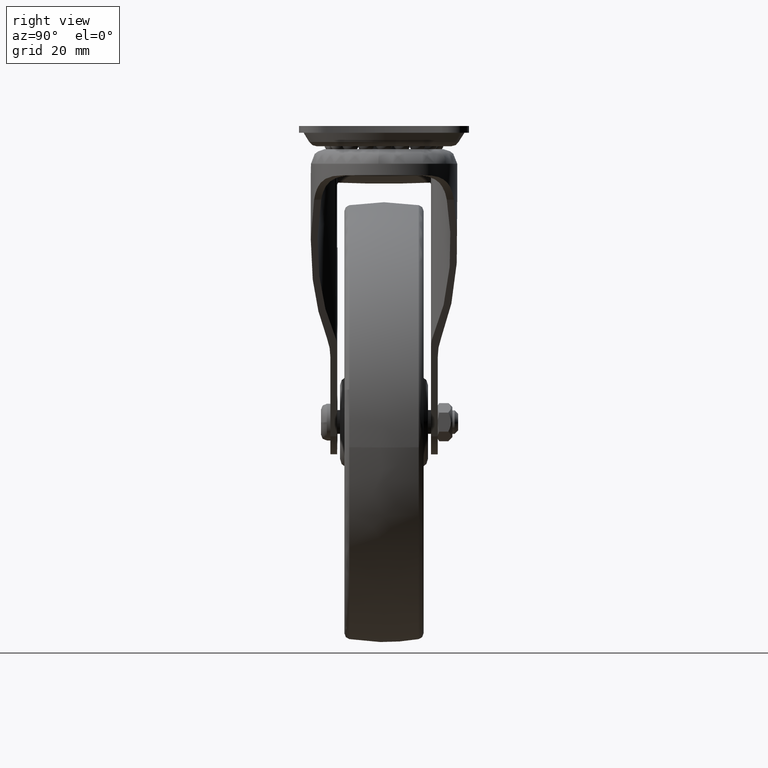
[diagram: clean part render]
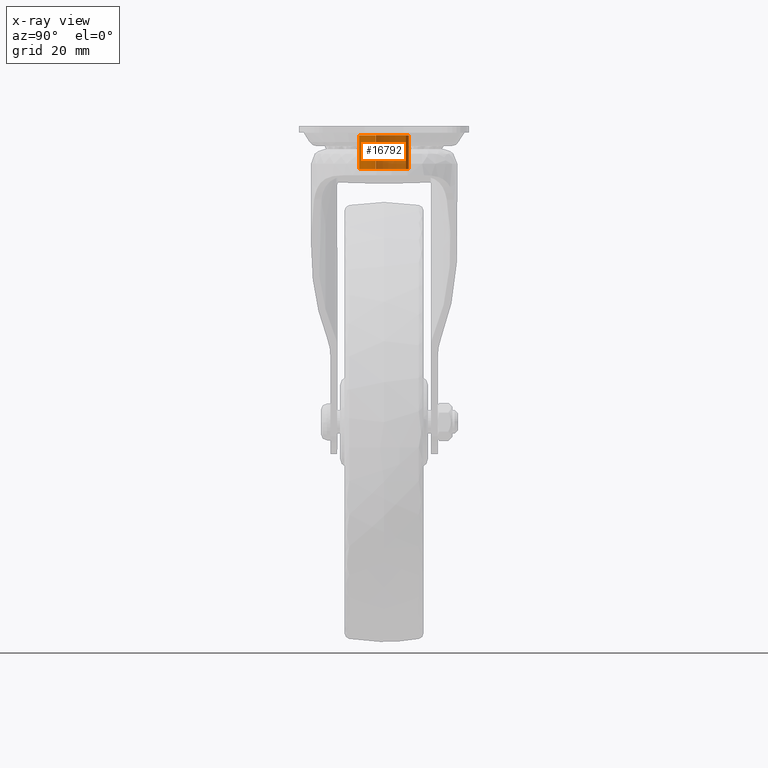
[diagram: x-ray — body ghosted, one internal face saturated and labeled with its STEP entity id]
A machine part, right view, then the same camera in x-ray: the body is ghosted and one INTERNAL B-rep face — a face not visible from any outside direction — is saturated and labeled: STEP entity #16792.
In plain terms, the highlighted face is a freeform B-spline surface patch.
Its self-contained STEP definition (entity closure, byte-faithful):
#16626=CARTESIAN_POINT('',(50.015012401692914,-2.830119467568274,98.089486398882599));
#16627=CARTESIAN_POINT('',(49.766120968067057,-3.534990039304352,98.089486398882599));
#16628=CARTESIAN_POINT('',(49.398023415489149,-4.185600260879469,98.089486398882613));
#16629=CARTESIAN_POINT('',(45.212423154609674,-11.583623676368612,98.089486398882599));
#16630=CARTESIAN_POINT('',(37.814399739120532,-7.398023415489146,98.089486398882613));
#16631=CARTESIAN_POINT('',(30.416376323631379,-3.212423154609676,98.089486398882599));
#16632=CARTESIAN_POINT('',(34.601976584510851,4.185600260879469,98.089486398882613));
#16633=CARTESIAN_POINT('',(38.787576845390319,11.583623676368612,98.089486398882599));
#16634=CARTESIAN_POINT('',(46.185600260879468,7.398023415489146,98.089486398882613));
#16635=CARTESIAN_POINT('',(50.015012401692914,-2.830119467568274,85.902759765027923));
#16636=CARTESIAN_POINT('',(49.766120968067057,-3.534990039304352,85.902759765027923));
#16637=CARTESIAN_POINT('',(49.398023415489149,-4.185600260879469,85.902759765027923));
#16638=CARTESIAN_POINT('',(45.212423154609674,-11.583623676368612,85.902759765027909));
#16639=CARTESIAN_POINT('',(37.814399739120532,-7.398023415489146,85.902759765027923));
#16640=CARTESIAN_POINT('',(30.416376323631379,-3.212423154609676,85.902759765027909));
#16641=CARTESIAN_POINT('',(34.601976584510851,4.185600260879469,85.902759765027923));
#16642=CARTESIAN_POINT('',(38.787576845390319,11.583623676368612,85.902759765027909));
#16643=CARTESIAN_POINT('',(46.185600260879468,7.398023415489146,85.902759765027923));
#16651=(BOUNDED_SURFACE()B_SPLINE_SURFACE(2,1,((#16626,#16635),(#16627,#16636),(#16628,#16637),(#16629,#16638),(#16630,#16639),(#16631,#16640),(#16632,#16641),(#16633,#16642),(#16634,#16643)),.UNSPECIFIED.,.F.,.F.,.U.)B_SPLINE_SURFACE_WITH_KNOTS((3,2,2,2,3),(2,2),(0.0,1.689991334482228,15.773252455167460,29.856513575852681,43.939774696537910),(0.0,12.186726633854690),.UNSPECIFIED.)GEOMETRIC_REPRESENTATION_ITEM()RATIONAL_B_SPLINE_SURFACE(((0.938140952186599,0.938140952186599),(0.964852813742386,0.964852813742386),(1.0,1.0),(0.707106781186548,0.707106781186548),(1.0,1.0),(0.707106781186548,0.707106781186548),(1.0,1.0),(0.707106781186548,0.707106781186548),(1.0,1.0)))REPRESENTATION_ITEM('')SURFACE());
#16652=CARTESIAN_POINT('',(50.015012401683151,-2.830119467595894,97.799498852568391));
#16653=VERTEX_POINT('',#16652);
#16654=CARTESIAN_POINT('',(33.500000000000000,0.0,97.799498852568391));
#16655=VERTEX_POINT('',#16654);
#16656=CARTESIAN_POINT('',(50.015012401683151,-2.830119467595894,97.799498852568391));
#16657=CARTESIAN_POINT('',(48.012964435979924,-8.500000000000002,97.799498852568405));
#16658=CARTESIAN_POINT('',(42.0,-8.500000000000000,97.799498852568391));
#16659=CARTESIAN_POINT('',(33.500000000000007,-8.500000000000002,97.799498852568405));
#16660=CARTESIAN_POINT('',(33.500000000000000,0.0,97.799498852568391));
#16668=(BOUNDED_CURVE()B_SPLINE_CURVE(2,(#16656,#16657,#16658,#16659,#16660),.UNSPECIFIED.,.F.,.U.)B_SPLINE_CURVE_WITH_KNOTS((3,2,3),(0.556571614117859,0.750000000000000,1.0),.UNSPECIFIED.)CURVE()GEOMETRIC_REPRESENTATION_ITEM()RATIONAL_B_SPLINE_CURVE((0.897439985583477,0.773384549796356,1.0,0.707106781186548,1.0))REPRESENTATION_ITEM(''));
#16669=EDGE_CURVE('',#16653,#16655,#16668,.T.);
#16670=ORIENTED_EDGE('',*,*,#16669,.T.);
#16671=CARTESIAN_POINT('',(46.185600260908473,7.398023415472734,97.799498852568377));
#16672=VERTEX_POINT('',#16671);
#16673=CARTESIAN_POINT('',(33.500000000000000,0.0,97.799498852568391));
#16674=CARTESIAN_POINT('',(33.500000000000007,8.500000000000002,97.799498852568405));
#16675=CARTESIAN_POINT('',(42.0,8.500000000000000,97.799498852568391));
#16676=CARTESIAN_POINT('',(44.237863241752407,8.500000000000002,97.799498852568405));
#16677=CARTESIAN_POINT('',(46.185600260908487,7.398023415472734,97.799498852568377));
#16685=(BOUNDED_CURVE()B_SPLINE_CURVE(2,(#16673,#16674,#16675,#16676,#16677),.UNSPECIFIED.,.F.,.U.)B_SPLINE_CURVE_WITH_KNOTS((3,2,3),(0.0,0.250000000000000,0.333929994258751),.UNSPECIFIED.)CURVE()GEOMETRIC_REPRESENTATION_ITEM()RATIONAL_B_SPLINE_CURVE((1.0,0.707106781186548,1.0,0.901669895306239,0.869362551591756))REPRESENTATION_ITEM(''));
#16686=EDGE_CURVE('',#16655,#16672,#16685,.T.);
#16687=ORIENTED_EDGE('',*,*,#16686,.T.);
#16688=CARTESIAN_POINT('',(46.185599911039048,7.398023613419248,86.199996999999996));
#16689=VERTEX_POINT('',#16688);
#16690=CARTESIAN_POINT('',(46.185600260908473,7.398023415472734,97.799498852568377));
#16691=CARTESIAN_POINT('',(46.185599911039048,7.398023613419248,86.199996999999996));
#16692=QUASI_UNIFORM_CURVE('',1,(#16690,#16691),.UNSPECIFIED.,.F.,.U.);
#16693=EDGE_CURVE('',#16672,#16689,#16692,.T.);
#16694=ORIENTED_EDGE('',*,*,#16693,.T.);
#16695=CARTESIAN_POINT('',(42.0,8.500000000000000,86.199996999999996));
#16696=VERTEX_POINT('',#16695);
#16697=CARTESIAN_POINT('',(42.0,8.500000000000000,86.199996999999996));
#16698=CARTESIAN_POINT('',(44.237862811904378,8.500000000000000,86.199996999999996));
#16699=CARTESIAN_POINT('',(46.185599911039048,7.398023613419248,86.199997000000010));
#16707=(BOUNDED_CURVE()B_SPLINE_CURVE(2,(#16697,#16698,#16699),.UNSPECIFIED.,.F.,.U.)B_SPLINE_CURVE_WITH_KNOTS((3,3),(0.0,0.491857788279996),.UNSPECIFIED.)CURVE()GEOMETRIC_REPRESENTATION_ITEM()RATIONAL_B_SPLINE_CURVE((1.0,0.934103551419709,0.933030465747834))REPRESENTATION_ITEM(''));
#16708=EDGE_CURVE('',#16696,#16689,#16707,.T.);
#16709=ORIENTED_EDGE('',*,*,#16708,.F.);
#16710=CARTESIAN_POINT('',(34.638784067832503,4.249999999999865,86.199996999999996));
#16711=VERTEX_POINT('',#16710);
#16712=CARTESIAN_POINT('',(34.638784067832503,4.249999999999865,86.199996999999996));
#16713=CARTESIAN_POINT('',(37.092522711888179,8.500000000000000,86.199996999999996));
#16714=CARTESIAN_POINT('',(42.0,8.500000000000000,86.199996999999996));
#16722=(BOUNDED_CURVE()B_SPLINE_CURVE(2,(#16712,#16713,#16714),.UNSPECIFIED.,.F.,.U.)CURVE()GEOMETRIC_REPRESENTATION_ITEM()QUASI_UNIFORM_CURVE()RATIONAL_B_SPLINE_CURVE((1.0,0.866025403784439,1.0))REPRESENTATION_ITEM(''));
#16723=EDGE_CURVE('',#16711,#16696,#16722,.T.);
#16724=ORIENTED_EDGE('',*,*,#16723,.F.);
#16725=CARTESIAN_POINT('',(34.638784067832397,-4.249999999999920,86.199996999999996));
#16726=VERTEX_POINT('',#16725);
#16727=CARTESIAN_POINT('',(34.638784067832283,-4.249999999999997,86.199996999999996));
#16728=CARTESIAN_POINT('',(32.185045423776366,-1.734723E-015,86.199996999999996));
#16729=CARTESIAN_POINT('',(34.638784067832503,4.249999999999865,86.199996999999996));
#16737=(BOUNDED_CURVE()B_SPLINE_CURVE(2,(#16727,#16728,#16729),.UNSPECIFIED.,.F.,.U.)CURVE()GEOMETRIC_REPRESENTATION_ITEM()QUASI_UNIFORM_CURVE()RATIONAL_B_SPLINE_CURVE((1.0,0.866025403784439,1.0))REPRESENTATION_ITEM(''));
#16738=EDGE_CURVE('',#16726,#16711,#16737,.T.);
#16739=ORIENTED_EDGE('',*,*,#16738,.F.);
#16740=CARTESIAN_POINT('',(42.0,-8.500000000000000,86.199996999999996));
#16741=VERTEX_POINT('',#16740);
#16742=CARTESIAN_POINT('',(42.0,-8.500000000000000,86.199996999999996));
#16743=CARTESIAN_POINT('',(37.092522711888179,-8.500000000000000,86.199996999999996));
#16744=CARTESIAN_POINT('',(34.638784067832283,-4.249999999999997,86.199996999999996));
#16752=(BOUNDED_CURVE()B_SPLINE_CURVE(2,(#16742,#16743,#16744),.UNSPECIFIED.,.F.,.U.)CURVE()GEOMETRIC_REPRESENTATION_ITEM()QUASI_UNIFORM_CURVE()RATIONAL_B_SPLINE_CURVE((1.0,0.866025403784439,1.0))REPRESENTATION_ITEM(''));
#16753=EDGE_CURVE('',#16741,#16726,#16752,.T.);
#16754=ORIENTED_EDGE('',*,*,#16753,.F.);
#16755=CARTESIAN_POINT('',(49.361215932167703,-4.250000000000000,86.199996999999996));
#16756=VERTEX_POINT('',#16755);
#16757=CARTESIAN_POINT('',(49.361215932167717,-4.250000000000014,86.199996999999996));
#16758=CARTESIAN_POINT('',(46.907477288111814,-8.500000000000000,86.199996999999982));
#16759=CARTESIAN_POINT('',(42.0,-8.500000000000000,86.199996999999996));
#16767=(BOUNDED_CURVE()B_SPLINE_CURVE(2,(#16757,#16758,#16759),.UNSPECIFIED.,.F.,.U.)CURVE()GEOMETRIC_REPRESENTATION_ITEM()QUASI_UNIFORM_CURVE()RATIONAL_B_SPLINE_CURVE((1.0,0.866025403784439,1.0))REPRESENTATION_ITEM(''));
#16768=EDGE_CURVE('',#16756,#16741,#16767,.T.);
#16769=ORIENTED_EDGE('',*,*,#16768,.F.);
#16770=CARTESIAN_POINT('',(50.015012401702670,-2.830119467540605,86.199996999999996));
#16771=VERTEX_POINT('',#16770);
#16772=CARTESIAN_POINT('',(50.015012401702677,-2.830119467540605,86.199996999999996));
#16773=CARTESIAN_POINT('',(49.753671879883697,-3.570246358823359,86.199996999999996));
#16774=CARTESIAN_POINT('',(49.361215932167717,-4.250000000000014,86.199996999999996));
#16782=(BOUNDED_CURVE()B_SPLINE_CURVE(2,(#16772,#16773,#16774),.UNSPECIFIED.,.F.,.U.)B_SPLINE_CURVE_WITH_KNOTS((3,3),(0.819774196571381,1.0),.UNSPECIFIED.)CURVE()GEOMETRIC_REPRESENTATION_ITEM()RATIONAL_B_SPLINE_CURVE((0.960411990397480,0.975854320758025,1.0))REPRESENTATION_ITEM(''));
#16783=EDGE_CURVE('',#16771,#16756,#16782,.T.);
#16784=ORIENTED_EDGE('',*,*,#16783,.F.);
#16785=CARTESIAN_POINT('',(50.015012401683151,-2.830119467595894,97.799498852568391));
#16786=CARTESIAN_POINT('',(50.015012401702670,-2.830119467540605,86.199996999999996));
#16787=QUASI_UNIFORM_CURVE('',1,(#16785,#16786),.UNSPECIFIED.,.F.,.U.);
#16788=EDGE_CURVE('',#16653,#16771,#16787,.T.);
#16789=ORIENTED_EDGE('',*,*,#16788,.F.);
#16790=EDGE_LOOP('',(#16670,#16687,#16694,#16709,#16724,#16739,#16754,#16769,#16784,#16789));
#16791=FACE_OUTER_BOUND('',#16790,.T.);
#16792=ADVANCED_FACE('',(#16791),#16651,.T.);